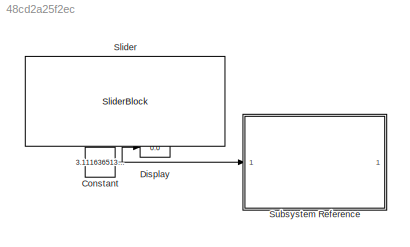
MODEL slx_48cd2a25f2ec
KIND model
CONFIG AbsTol = auto
CONFIG EnableMultiTasking = on
CONFIG FixedStep = auto
CONFIG MaxStep = auto
CONFIG MinStep = auto
CONFIG RelTol = 1e-3
CONFIG SampleTimeConstraint = Unconstrained
CONFIG SolverName = FixedStepAuto
CONFIG StartTime = 0.0
CONFIG StopTime = inf
BLOCK [Constant] Constant
  OutDataTypeStr = uint8
  Value = 3.111636513157895
BLOCK [Display] Display
  Decimation = 1
BLOCK [SliderBlock] Slider
  ScaleMax = 15
  TickInterval = 3
BLOCK [SubSystem] Subsystem Reference
  ReferencedSubsystem = Sub_Led
NET Constant:1 -> Display:1, Subsystem Reference:1
note: NET lines group one-source signal fan-out (src -> all destinations, sorted); 1:1 wires keep LINE
